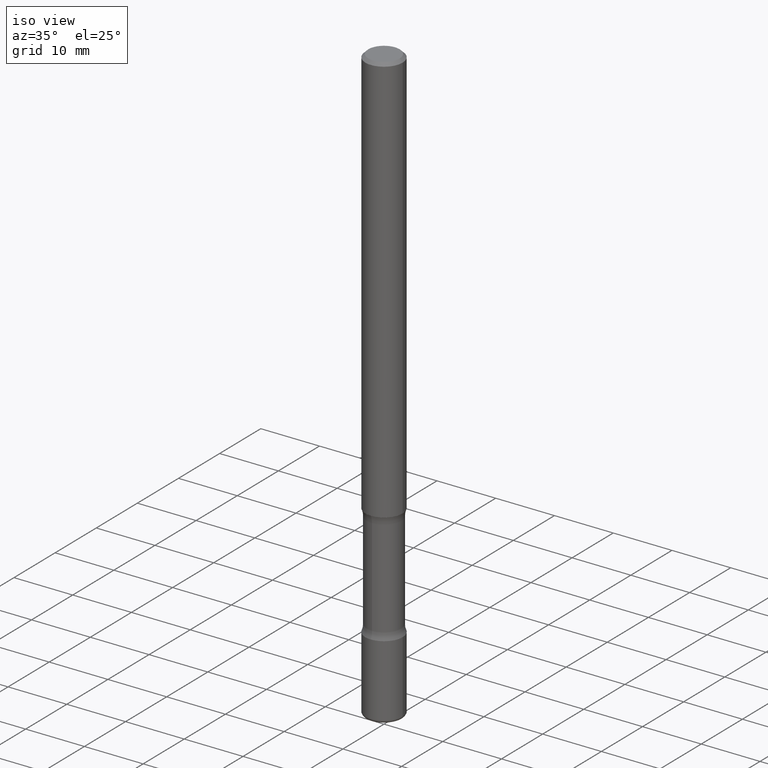
[diagram: clean part render]
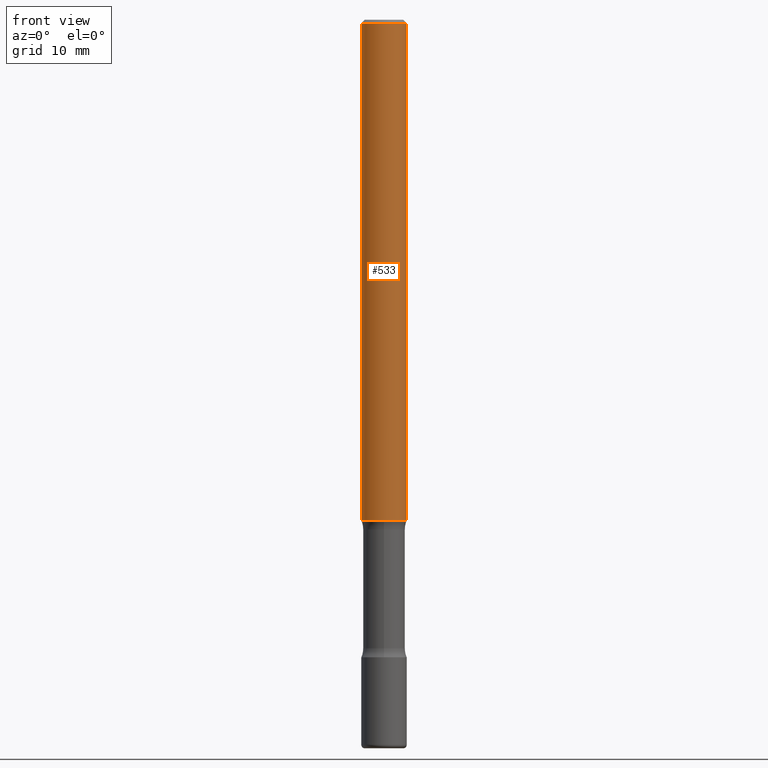
[diagram: tour spotlight — one face highlighted and labeled with its STEP entity id]
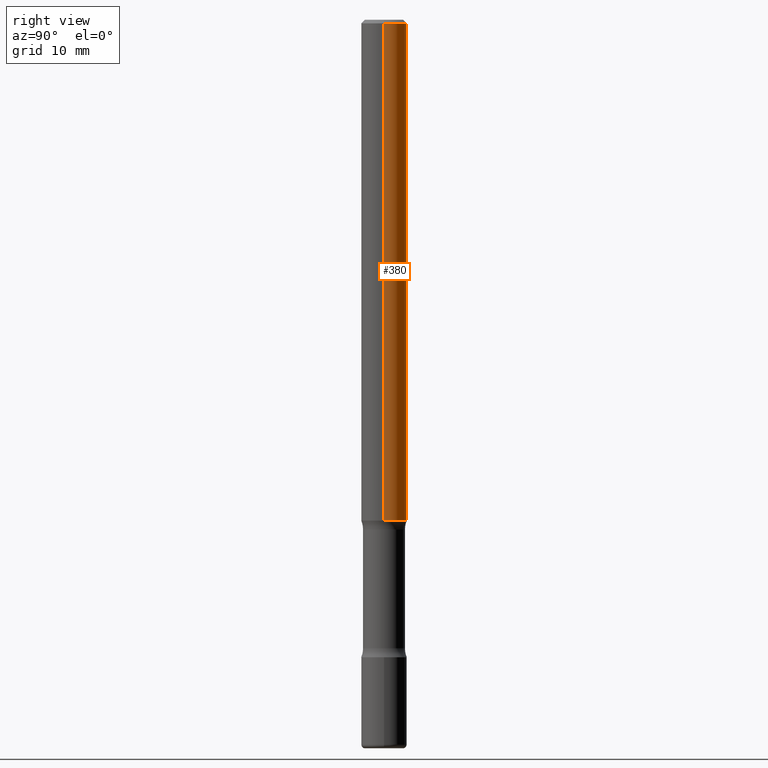
[diagram: tour spotlight — one face highlighted and labeled with its STEP entity id]
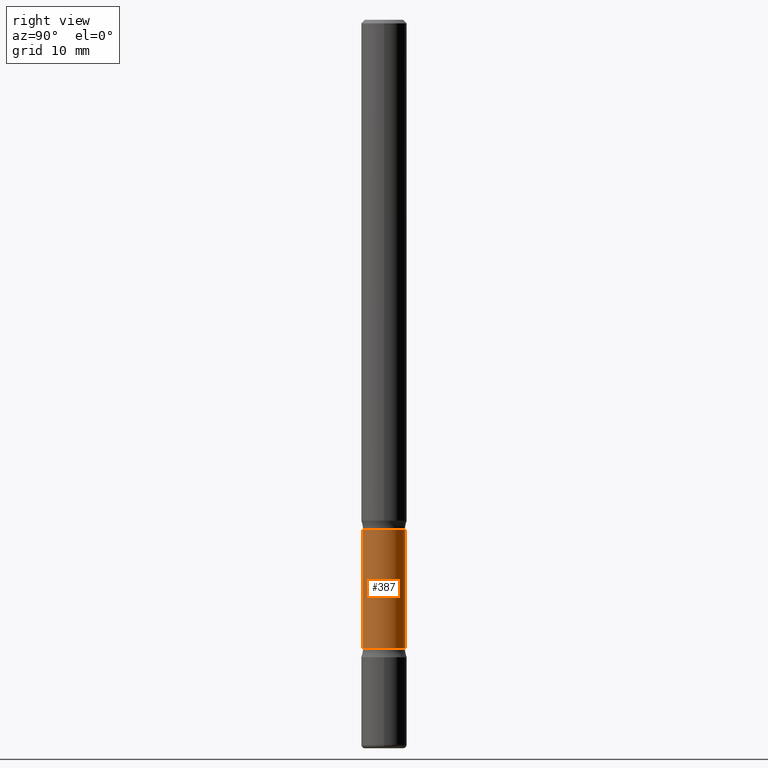
[diagram: tour spotlight — one face highlighted and labeled with its STEP entity id]
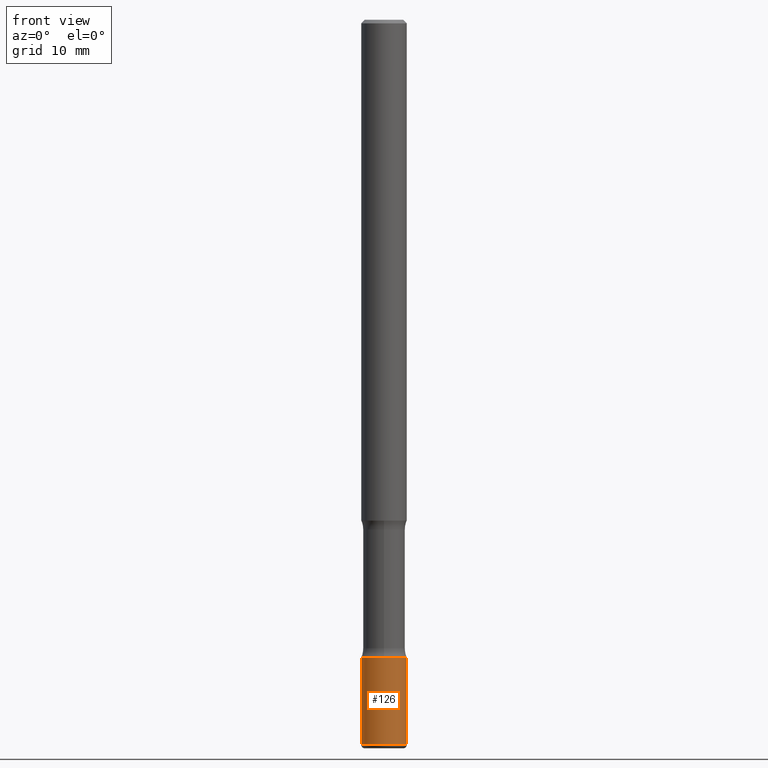
[diagram: tour spotlight — one face highlighted and labeled with its STEP entity id]
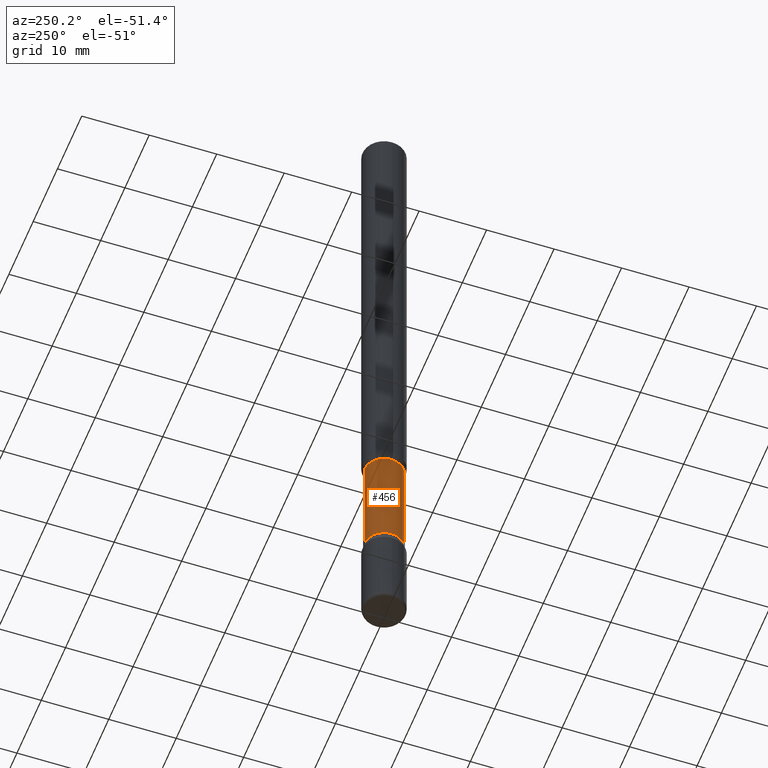
[diagram: tour spotlight — one face highlighted and labeled with its STEP entity id]
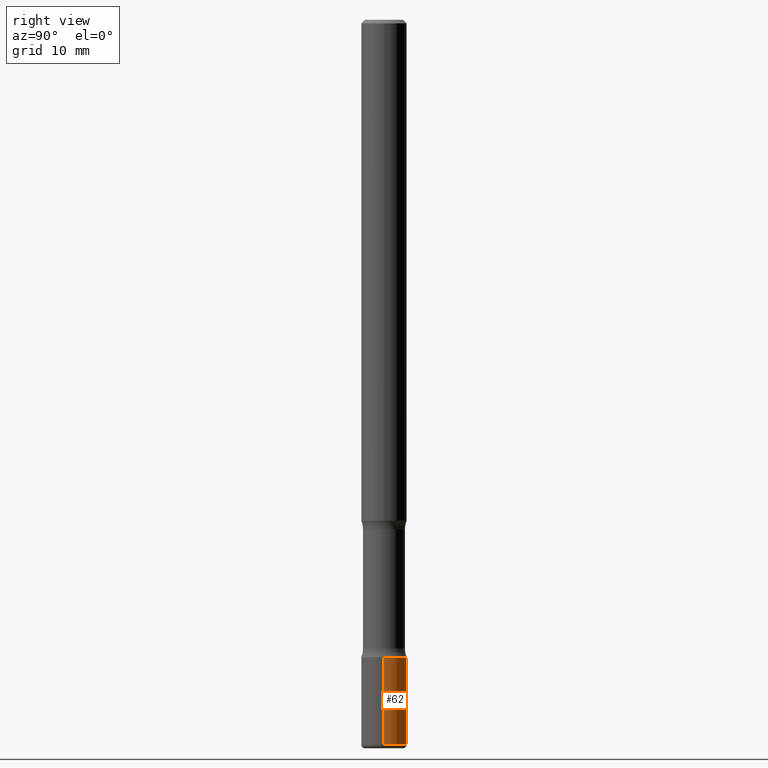
[diagram: tour spotlight — one face highlighted and labeled with its STEP entity id]
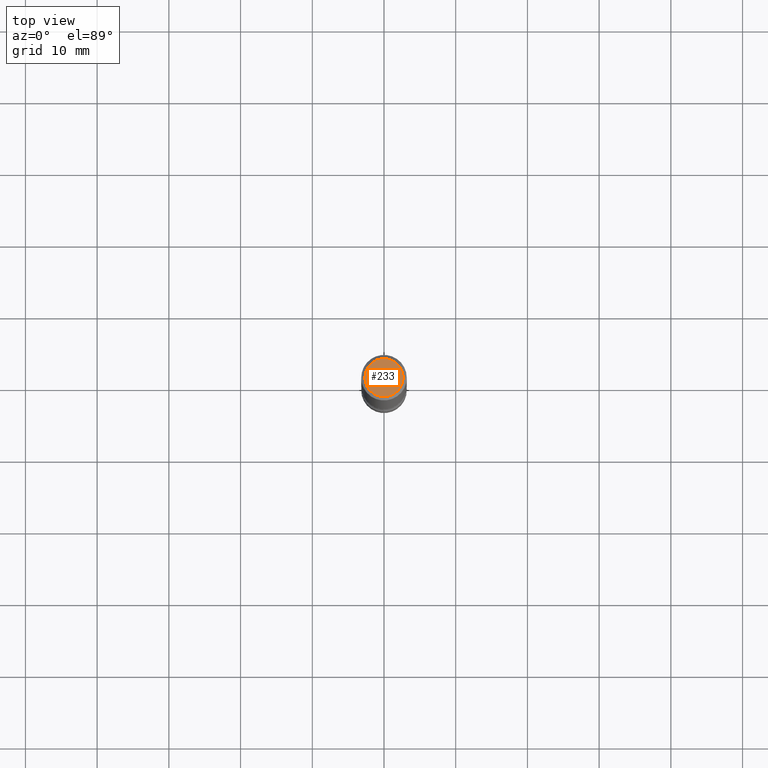
[diagram: tour spotlight — one face highlighted and labeled with its STEP entity id]
A machine part: a face-by-face anatomy tour. The part has 20 B-rep faces; the first image is the clean iso view, then the 7 largest visible faces are spotlighted one at a time (largest first), each with its STEP entity span.

Face 1 — front view, entity #533. In plain terms, the highlighted cylindrical surface (edge-blend (fillet) strip) has radius 3.175 mm, axis along (-0, 0, 1).
Definition (entity closure, byte-faithful):
#7 = AXIS2_PLACEMENT_3D ( 'NONE', #538, #363, #156 ) ;
#35 = CARTESIAN_POINT ( 'NONE',  ( -0.1250000000000005829, 8.030407079339238863E-16, -0.02000000000000013572 ) ) ;
#38 = CIRCLE ( 'NONE', #341, 0.1250000000000009159 ) ;
#45 = DIRECTION ( 'NONE',  ( -2.445468806185136597E-29, 3.491481338843145583E-15, 1.000000000000000000 ) ) ;
#50 = CARTESIAN_POINT ( 'NONE',  ( 0.1250000000000005829, -9.273918764983086878E-16, -0.02000000000000013572 ) ) ;
#66 = VECTOR ( 'NONE', #409, 39.37007874015748143 ) ;
#67 = ORIENTED_EDGE ( 'NONE', *, *, #553, .T. ) ;
#68 = DIRECTION ( 'NONE',  ( -2.445468806185136877E-29, 3.491481338843145188E-15, 1.000000000000000000 ) ) ;
#78 = ORIENTED_EDGE ( 'NONE', *, *, #438, .T. ) ;
#85 = DIRECTION ( 'NONE',  ( -2.445468806185136597E-29, 3.491481338843145583E-15, 1.000000000000000000 ) ) ;
#117 = FACE_OUTER_BOUND ( 'NONE', #164, .T. ) ;
#119 = CARTESIAN_POINT ( 'NONE',  ( 6.725039217009124520E-29, -9.601573681818649859E-15, -2.750000000000000000 ) ) ;
#123 = CYLINDRICAL_SURFACE ( 'NONE', #396, 0.1250000000000007494 ) ;
#125 = CARTESIAN_POINT ( 'NONE',  ( 0.000000000000000000, 0.000000000000000000, 0.000000000000000000 ) ) ;
#128 = DIRECTION ( 'NONE',  ( 1.000000000000000000, -6.982962677686273810E-15, 0.000000000000000000 ) ) ;
#135 = CIRCLE ( 'NONE', #7, 0.1250000000000005829 ) ;
#156 = DIRECTION ( 'NONE',  ( 1.000000000000000000, -6.982962677686267499E-15, 0.000000000000000000 ) ) ;
#164 = EDGE_LOOP ( 'NONE', ( #174, #67, #78, #310 ) ) ;
#174 = ORIENTED_EDGE ( 'NONE', *, *, #317, .F. ) ;
#203 = LINE ( 'NONE', #543, #66 ) ;
#238 = VERTEX_POINT ( 'NONE', #50 ) ;
#270 = VECTOR ( 'NONE', #68, 39.37007874015748143 ) ;
#278 = CARTESIAN_POINT ( 'NONE',  ( -0.1250000000000009159, -3.947523234597618725E-15, -2.750000000000000000 ) ) ;
#281 = LINE ( 'NONE', #356, #270 ) ;
#289 = CARTESIAN_POINT ( 'NONE',  ( 0.1250000000000009159, -1.047444401652944109E-14, -2.750000000000000000 ) ) ;
#310 = ORIENTED_EDGE ( 'NONE', *, *, #325, .F. ) ;
#317 = EDGE_CURVE ( 'NONE', #357, #448, #203, .T. ) ;
#325 = EDGE_CURVE ( 'NONE', #448, #238, #135, .T. ) ;
#341 = AXIS2_PLACEMENT_3D ( 'NONE', #119, #45, #128 ) ;
#356 = CARTESIAN_POINT ( 'NONE',  ( 0.1250000000000007494, -8.728703347107885650E-16, 6.095220969744956175E-30 ) ) ;
#357 = VERTEX_POINT ( 'NONE', #278 ) ;
#363 = DIRECTION ( 'NONE',  ( -2.445468806185136597E-29, 3.491481338843145583E-15, 1.000000000000000000 ) ) ;
#396 = AXIS2_PLACEMENT_3D ( 'NONE', #125, #85, #464 ) ;
#409 = DIRECTION ( 'NONE',  ( -2.445468806185136877E-29, 3.491481338843145188E-15, 1.000000000000000000 ) ) ;
#438 = EDGE_CURVE ( 'NONE', #534, #238, #281, .T. ) ;
#448 = VERTEX_POINT ( 'NONE', #35 ) ;
#464 = DIRECTION ( 'NONE',  ( 1.000000000000000000, -6.982962677686266711E-15, 4.876176775795935793E-29 ) ) ;
#533 = ADVANCED_FACE ( 'NONE', ( #117 ), #123, .T. ) ;
#534 = VERTEX_POINT ( 'NONE', #289 ) ;
#538 = CARTESIAN_POINT ( 'NONE',  ( 4.890937612370306439E-31, -6.982962677686338448E-17, -0.02000000000000013572 ) ) ;
#543 = CARTESIAN_POINT ( 'NONE',  ( -0.1250000000000007494, 8.881784197001305572E-16, -6.148668862818669362E-30 ) ) ;
#553 = EDGE_CURVE ( 'NONE', #357, #534, #38, .T. ) ;

Face 2 — right view, entity #380. In plain terms, the highlighted cylindrical surface (edge-blend (fillet) strip) has radius 3.175 mm, axis along (-0, 0, 1).
Definition (entity closure, byte-faithful):
#21 = ORIENTED_EDGE ( 'NONE', *, *, #506, .T. ) ;
#33 = CARTESIAN_POINT ( 'NONE',  ( 0.000000000000000000, 0.000000000000000000, 0.000000000000000000 ) ) ;
#35 = CARTESIAN_POINT ( 'NONE',  ( -0.1250000000000005829, 8.030407079339238863E-16, -0.02000000000000013572 ) ) ;
#50 = CARTESIAN_POINT ( 'NONE',  ( 0.1250000000000005829, -9.273918764983086878E-16, -0.02000000000000013572 ) ) ;
#66 = VECTOR ( 'NONE', #409, 39.37007874015748143 ) ;
#68 = DIRECTION ( 'NONE',  ( -2.445468806185136877E-29, 3.491481338843145188E-15, 1.000000000000000000 ) ) ;
#70 = EDGE_LOOP ( 'NONE', ( #21, #463, #241, #366 ) ) ;
#102 = CYLINDRICAL_SURFACE ( 'NONE', #130, 0.1250000000000007494 ) ;
#104 = AXIS2_PLACEMENT_3D ( 'NONE', #323, #420, #367 ) ;
#130 = AXIS2_PLACEMENT_3D ( 'NONE', #33, #237, #493 ) ;
#168 = DIRECTION ( 'NONE',  ( -2.445468806185136597E-29, 3.491481338843145583E-15, 1.000000000000000000 ) ) ;
#190 = CIRCLE ( 'NONE', #104, 0.1250000000000005829 ) ;
#200 = AXIS2_PLACEMENT_3D ( 'NONE', #555, #168, #467 ) ;
#203 = LINE ( 'NONE', #543, #66 ) ;
#237 = DIRECTION ( 'NONE',  ( -2.445468806185136597E-29, 3.491481338843145583E-15, 1.000000000000000000 ) ) ;
#238 = VERTEX_POINT ( 'NONE', #50 ) ;
#241 = ORIENTED_EDGE ( 'NONE', *, *, #465, .F. ) ;
#270 = VECTOR ( 'NONE', #68, 39.37007874015748143 ) ;
#278 = CARTESIAN_POINT ( 'NONE',  ( -0.1250000000000009159, -3.947523234597618725E-15, -2.750000000000000000 ) ) ;
#281 = LINE ( 'NONE', #356, #270 ) ;
#289 = CARTESIAN_POINT ( 'NONE',  ( 0.1250000000000009159, -1.047444401652944109E-14, -2.750000000000000000 ) ) ;
#317 = EDGE_CURVE ( 'NONE', #357, #448, #203, .T. ) ;
#323 = CARTESIAN_POINT ( 'NONE',  ( 4.890937612370306439E-31, -6.982962677686338448E-17, -0.02000000000000013572 ) ) ;
#356 = CARTESIAN_POINT ( 'NONE',  ( 0.1250000000000007494, -8.728703347107885650E-16, 6.095220969744956175E-30 ) ) ;
#357 = VERTEX_POINT ( 'NONE', #278 ) ;
#366 = ORIENTED_EDGE ( 'NONE', *, *, #438, .F. ) ;
#367 = DIRECTION ( 'NONE',  ( 1.000000000000000000, -6.982962677686267499E-15, 0.000000000000000000 ) ) ;
#380 = ADVANCED_FACE ( 'NONE', ( #451 ), #102, .T. ) ;
#409 = DIRECTION ( 'NONE',  ( -2.445468806185136877E-29, 3.491481338843145188E-15, 1.000000000000000000 ) ) ;
#420 = DIRECTION ( 'NONE',  ( -2.445468806185136597E-29, 3.491481338843145583E-15, 1.000000000000000000 ) ) ;
#438 = EDGE_CURVE ( 'NONE', #534, #238, #281, .T. ) ;
#448 = VERTEX_POINT ( 'NONE', #35 ) ;
#451 = FACE_OUTER_BOUND ( 'NONE', #70, .T. ) ;
#463 = ORIENTED_EDGE ( 'NONE', *, *, #317, .T. ) ;
#465 = EDGE_CURVE ( 'NONE', #238, #448, #190, .T. ) ;
#467 = DIRECTION ( 'NONE',  ( 1.000000000000000000, -6.982962677686273810E-15, 0.000000000000000000 ) ) ;
#493 = DIRECTION ( 'NONE',  ( 1.000000000000000000, -6.982962677686266711E-15, 4.876176775795935793E-29 ) ) ;
#506 = EDGE_CURVE ( 'NONE', #534, #357, #558, .T. ) ;
#534 = VERTEX_POINT ( 'NONE', #289 ) ;
#543 = CARTESIAN_POINT ( 'NONE',  ( -0.1250000000000007494, 8.881784197001305572E-16, -6.148668862818669362E-30 ) ) ;
#555 = CARTESIAN_POINT ( 'NONE',  ( 6.725039217009124520E-29, -9.601573681818649859E-15, -2.750000000000000000 ) ) ;
#558 = CIRCLE ( 'NONE', #200, 0.1250000000000009159 ) ;

Face 3 — right view, entity #387. In plain terms, the highlighted cylindrical surface (edge-blend (fillet) strip) has radius 2.921 mm, axis along (0, -0, -1).
Definition (entity closure, byte-faithful):
#1 = CARTESIAN_POINT ( 'NONE',  ( -8.232597597325185014E-16, -0.1150000000000099276, -2.798989794855664126 ) ) ;
#3 = CARTESIAN_POINT ( 'NONE',  ( 8.030407079339889673E-16, 0.1149999999999902073, -2.798989794855665458 ) ) ;
#6 = DIRECTION ( 'NONE',  ( 2.540850769089485060E-29, -3.354888939159931929E-15, -1.000000000000000000 ) ) ;
#16 = DIRECTION ( 'NONE',  ( 2.540850769089485060E-29, -3.354888939159932323E-15, -1.000000000000000000 ) ) ;
#32 = VERTEX_POINT ( 'NONE', #3 ) ;
#34 = ORIENTED_EDGE ( 'NONE', *, *, #157, .T. ) ;
#105 = CIRCLE ( 'NONE', #522, 0.1150000000000000744 ) ;
#109 = VERTEX_POINT ( 'NONE', #306 ) ;
#114 = FACE_OUTER_BOUND ( 'NONE', #318, .T. ) ;
#129 = EDGE_CURVE ( 'NONE', #109, #498, #271, .T. ) ;
#150 = CARTESIAN_POINT ( 'NONE',  ( 8.030407079340191413E-16, 0.1149999999999861411, -4.000000000000000888 ) ) ;
#157 = EDGE_CURVE ( 'NONE', #32, #500, #105, .T. ) ;
#188 = ORIENTED_EDGE ( 'NONE', *, *, #307, .F. ) ;
#189 = CARTESIAN_POINT ( 'NONE',  ( 6.777978502767415582E-29, -9.868373302474043768E-15, -2.798989794855664570 ) ) ;
#195 = DIRECTION ( 'NONE',  ( 2.540850769089485060E-29, -3.354888939159932323E-15, -1.000000000000000000 ) ) ;
#205 = CARTESIAN_POINT ( 'NONE',  ( 9.829566206192720058E-29, -1.389762915553097550E-14, -4.000000000000000000 ) ) ;
#220 = CARTESIAN_POINT ( 'NONE',  ( -7.889572697436279993E-16, -0.1150000000000139383, -3.999999999999999556 ) ) ;
#240 = EDGE_CURVE ( 'NONE', #500, #498, #258, .T. ) ;
#242 = DIRECTION ( 'NONE',  ( 6.982962677686265922E-15, 1.000000000000000000, -4.751039988981325759E-15 ) ) ;
#257 = DIRECTION ( 'NONE',  ( 6.982962677686265922E-15, 1.000000000000000000, -4.751039988981324181E-15 ) ) ;
#258 = LINE ( 'NONE', #220, #431 ) ;
#259 = VECTOR ( 'NONE', #496, 39.37007874015748143 ) ;
#269 = CYLINDRICAL_SURFACE ( 'NONE', #418, 0.1150000000000000328 ) ;
#271 = CIRCLE ( 'NONE', #461, 0.1150000000000000189 ) ;
#280 = ORIENTED_EDGE ( 'NONE', *, *, #240, .T. ) ;
#297 = DIRECTION ( 'NONE',  ( 6.982962677686265922E-15, 1.000000000000000000, -4.751039988981326548E-15 ) ) ;
#301 = DIRECTION ( 'NONE',  ( 2.540850769089485060E-29, -3.354888939159932323E-15, -1.000000000000000000 ) ) ;
#306 = CARTESIAN_POINT ( 'NONE',  ( 8.030407079340050404E-16, 0.1149999999999879591, -3.451010205144336762 ) ) ;
#307 = EDGE_CURVE ( 'NONE', #32, #109, #314, .T. ) ;
#314 = LINE ( 'NONE', #150, #259 ) ;
#318 = EDGE_LOOP ( 'NONE', ( #34, #280, #495, #188 ) ) ;
#329 = CARTESIAN_POINT ( 'NONE',  ( -8.232597597324986812E-16, -0.1150000000000120787, -3.451010205144335430 ) ) ;
#387 = ADVANCED_FACE ( 'NONE', ( #114 ), #269, .T. ) ;
#418 = AXIS2_PLACEMENT_3D ( 'NONE', #205, #195, #242 ) ;
#431 = VECTOR ( 'NONE', #6, 39.37007874015748143 ) ;
#461 = AXIS2_PLACEMENT_3D ( 'NONE', #482, #16, #297 ) ;
#482 = CARTESIAN_POINT ( 'NONE',  ( 8.434665063711427081E-29, -1.205582936505802725E-14, -3.451010205144335874 ) ) ;
#495 = ORIENTED_EDGE ( 'NONE', *, *, #129, .F. ) ;
#496 = DIRECTION ( 'NONE',  ( 2.540850769089485060E-29, -3.354888939159931929E-15, -1.000000000000000000 ) ) ;
#498 = VERTEX_POINT ( 'NONE', #329 ) ;
#500 = VERTEX_POINT ( 'NONE', #1 ) ;
#522 = AXIS2_PLACEMENT_3D ( 'NONE', #189, #301, #257 ) ;

Face 4 — front view, entity #126. In plain terms, the highlighted cylindrical surface (edge-blend (fillet) strip) has radius 3.175 mm, axis along (-0, 0, 1).
Definition (entity closure, byte-faithful):
#22 = DIRECTION ( 'NONE',  ( 1.000000000000000000, -6.982962677686272233E-15, 0.000000000000000000 ) ) ;
#23 = EDGE_CURVE ( 'NONE', #113, #434, #514, .T. ) ;
#59 = DIRECTION ( 'NONE',  ( -2.445468806185136877E-29, 3.491481338843145188E-15, 1.000000000000000000 ) ) ;
#95 = AXIS2_PLACEMENT_3D ( 'NONE', #273, #112, #239 ) ;
#107 = CARTESIAN_POINT ( 'NONE',  ( 9.732965848616844417E-29, -1.389609572859572061E-14, -3.979999999999999982 ) ) ;
#112 = DIRECTION ( 'NONE',  ( -2.445468806185136597E-29, 3.491481338843145583E-15, 1.000000000000000000 ) ) ;
#113 = VERTEX_POINT ( 'NONE', #479 ) ;
#118 = ORIENTED_EDGE ( 'NONE', *, *, #279, .T. ) ;
#126 = ADVANCED_FACE ( 'NONE', ( #435 ), #485, .T. ) ;
#127 = DIRECTION ( 'NONE',  ( -2.445468806185136877E-29, 3.491481338843145188E-15, 1.000000000000000000 ) ) ;
#137 = ORIENTED_EDGE ( 'NONE', *, *, #153, .F. ) ;
#151 = AXIS2_PLACEMENT_3D ( 'NONE', #394, #176, #339 ) ;
#153 = EDGE_CURVE ( 'NONE', #537, #459, #527, .T. ) ;
#176 = DIRECTION ( 'NONE',  ( -2.445468806185136597E-29, 3.491481338843145583E-15, 1.000000000000000000 ) ) ;
#215 = CARTESIAN_POINT ( 'NONE',  ( -0.1250000000000001665, -1.216996178757323895E-14, -3.499999999999999112 ) ) ;
#219 = EDGE_LOOP ( 'NONE', ( #137, #118, #322, #424 ) ) ;
#239 = DIRECTION ( 'NONE',  ( 1.000000000000000000, -6.982962677686269077E-15, 0.000000000000000000 ) ) ;
#273 = CARTESIAN_POINT ( 'NONE',  ( 8.559140821647976968E-29, -1.222018468595100619E-14, -3.499999999999999112 ) ) ;
#279 = EDGE_CURVE ( 'NONE', #537, #113, #368, .T. ) ;
#322 = ORIENTED_EDGE ( 'NONE', *, *, #23, .T. ) ;
#332 = VECTOR ( 'NONE', #127, 39.37007874015748143 ) ;
#336 = CARTESIAN_POINT ( 'NONE',  ( -0.1250000000000000555, -1.300791730889559380E-14, -3.979999999999999982 ) ) ;
#339 = DIRECTION ( 'NONE',  ( 1.000000000000000000, -6.982962677686266711E-15, 4.876176775795935793E-29 ) ) ;
#349 = EDGE_CURVE ( 'NONE', #459, #434, #414, .T. ) ;
#368 = CIRCLE ( 'NONE', #472, 0.1250000000000001110 ) ;
#394 = CARTESIAN_POINT ( 'NONE',  ( 0.000000000000000000, 0.000000000000000000, 0.000000000000000000 ) ) ;
#414 = CIRCLE ( 'NONE', #95, 0.1250000000000001665 ) ;
#424 = ORIENTED_EDGE ( 'NONE', *, *, #349, .F. ) ;
#434 = VERTEX_POINT ( 'NONE', #499 ) ;
#435 = FACE_OUTER_BOUND ( 'NONE', #219, .T. ) ;
#457 = CARTESIAN_POINT ( 'NONE',  ( 0.1250000000000001388, -8.728703347107843249E-16, 6.095220969744926748E-30 ) ) ;
#459 = VERTEX_POINT ( 'NONE', #215 ) ;
#472 = AXIS2_PLACEMENT_3D ( 'NONE', #107, #541, #22 ) ;
#479 = CARTESIAN_POINT ( 'NONE',  ( 0.1250000000000000555, -1.476896606330650395E-14, -3.979999999999999982 ) ) ;
#485 = CYLINDRICAL_SURFACE ( 'NONE', #151, 0.1250000000000001388 ) ;
#499 = CARTESIAN_POINT ( 'NONE',  ( 0.1250000000000001665, -1.309305502066179110E-14, -3.499999999999999112 ) ) ;
#514 = LINE ( 'NONE', #457, #332 ) ;
#519 = CARTESIAN_POINT ( 'NONE',  ( -0.1250000000000001388, 8.881784197001262184E-16, -6.148668862818638533E-30 ) ) ;
#527 = LINE ( 'NONE', #519, #546 ) ;
#537 = VERTEX_POINT ( 'NONE', #336 ) ;
#541 = DIRECTION ( 'NONE',  ( -2.445468806185136597E-29, 3.491481338843145583E-15, 1.000000000000000000 ) ) ;
#546 = VECTOR ( 'NONE', #59, 39.37007874015748143 ) ;

Face 5 — auxiliary view, entity #456. In plain terms, the highlighted cylindrical surface (edge-blend (fillet) strip) has radius 2.921 mm, axis along (0, -0, -1).
Definition (entity closure, byte-faithful):
#1 = CARTESIAN_POINT ( 'NONE',  ( -8.232597597325185014E-16, -0.1150000000000099276, -2.798989794855664126 ) ) ;
#3 = CARTESIAN_POINT ( 'NONE',  ( 8.030407079339889673E-16, 0.1149999999999902073, -2.798989794855665458 ) ) ;
#6 = DIRECTION ( 'NONE',  ( 2.540850769089485060E-29, -3.354888939159931929E-15, -1.000000000000000000 ) ) ;
#15 = CARTESIAN_POINT ( 'NONE',  ( 6.777978502767415582E-29, -9.868373302474043768E-15, -2.798989794855664570 ) ) ;
#29 = EDGE_LOOP ( 'NONE', ( #140, #154, #468, #74 ) ) ;
#32 = VERTEX_POINT ( 'NONE', #3 ) ;
#40 = AXIS2_PLACEMENT_3D ( 'NONE', #15, #351, #393 ) ;
#71 = DIRECTION ( 'NONE',  ( 6.982962677686265922E-15, 1.000000000000000000, -4.751039988981326548E-15 ) ) ;
#74 = ORIENTED_EDGE ( 'NONE', *, *, #255, .F. ) ;
#75 = CARTESIAN_POINT ( 'NONE',  ( 8.434665063711427081E-29, -1.205582936505802725E-14, -3.451010205144335874 ) ) ;
#109 = VERTEX_POINT ( 'NONE', #306 ) ;
#110 = DIRECTION ( 'NONE',  ( 2.540850769089485060E-29, -3.354888939159932323E-15, -1.000000000000000000 ) ) ;
#140 = ORIENTED_EDGE ( 'NONE', *, *, #240, .F. ) ;
#150 = CARTESIAN_POINT ( 'NONE',  ( 8.030407079340191413E-16, 0.1149999999999861411, -4.000000000000000888 ) ) ;
#154 = ORIENTED_EDGE ( 'NONE', *, *, #196, .T. ) ;
#163 = DIRECTION ( 'NONE',  ( 6.982962677686265922E-15, 1.000000000000000000, -4.751039988981325759E-15 ) ) ;
#178 = CIRCLE ( 'NONE', #508, 0.1150000000000000189 ) ;
#196 = EDGE_CURVE ( 'NONE', #500, #32, #487, .T. ) ;
#209 = AXIS2_PLACEMENT_3D ( 'NONE', #376, #413, #163 ) ;
#220 = CARTESIAN_POINT ( 'NONE',  ( -7.889572697436279993E-16, -0.1150000000000139383, -3.999999999999999556 ) ) ;
#240 = EDGE_CURVE ( 'NONE', #500, #498, #258, .T. ) ;
#248 = FACE_OUTER_BOUND ( 'NONE', #29, .T. ) ;
#255 = EDGE_CURVE ( 'NONE', #498, #109, #178, .T. ) ;
#258 = LINE ( 'NONE', #220, #431 ) ;
#259 = VECTOR ( 'NONE', #496, 39.37007874015748143 ) ;
#306 = CARTESIAN_POINT ( 'NONE',  ( 8.030407079340050404E-16, 0.1149999999999879591, -3.451010205144336762 ) ) ;
#307 = EDGE_CURVE ( 'NONE', #32, #109, #314, .T. ) ;
#314 = LINE ( 'NONE', #150, #259 ) ;
#329 = CARTESIAN_POINT ( 'NONE',  ( -8.232597597324986812E-16, -0.1150000000000120787, -3.451010205144335430 ) ) ;
#351 = DIRECTION ( 'NONE',  ( 2.540850769089485060E-29, -3.354888939159932323E-15, -1.000000000000000000 ) ) ;
#376 = CARTESIAN_POINT ( 'NONE',  ( 9.829566206192720058E-29, -1.389762915553097550E-14, -4.000000000000000000 ) ) ;
#393 = DIRECTION ( 'NONE',  ( 6.982962677686265922E-15, 1.000000000000000000, -4.751039988981324181E-15 ) ) ;
#413 = DIRECTION ( 'NONE',  ( 2.540850769089485060E-29, -3.354888939159932323E-15, -1.000000000000000000 ) ) ;
#431 = VECTOR ( 'NONE', #6, 39.37007874015748143 ) ;
#456 = ADVANCED_FACE ( 'NONE', ( #248 ), #504, .T. ) ;
#468 = ORIENTED_EDGE ( 'NONE', *, *, #307, .T. ) ;
#487 = CIRCLE ( 'NONE', #40, 0.1150000000000000744 ) ;
#496 = DIRECTION ( 'NONE',  ( 2.540850769089485060E-29, -3.354888939159931929E-15, -1.000000000000000000 ) ) ;
#498 = VERTEX_POINT ( 'NONE', #329 ) ;
#500 = VERTEX_POINT ( 'NONE', #1 ) ;
#504 = CYLINDRICAL_SURFACE ( 'NONE', #209, 0.1150000000000000328 ) ;
#508 = AXIS2_PLACEMENT_3D ( 'NONE', #75, #110, #71 ) ;

Face 6 — right view, entity #62. In plain terms, the highlighted cylindrical surface (edge-blend (fillet) strip) has radius 3.175 mm, axis along (-0, 0, 1).
Definition (entity closure, byte-faithful):
#23 = EDGE_CURVE ( 'NONE', #113, #434, #514, .T. ) ;
#49 = DIRECTION ( 'NONE',  ( -2.445468806185136597E-29, 3.491481338843145583E-15, 1.000000000000000000 ) ) ;
#59 = DIRECTION ( 'NONE',  ( -2.445468806185136877E-29, 3.491481338843145188E-15, 1.000000000000000000 ) ) ;
#62 = ADVANCED_FACE ( 'NONE', ( #516 ), #469, .T. ) ;
#72 = ORIENTED_EDGE ( 'NONE', *, *, #536, .F. ) ;
#83 = CARTESIAN_POINT ( 'NONE',  ( 8.559140821647976968E-29, -1.222018468595100619E-14, -3.499999999999999112 ) ) ;
#96 = AXIS2_PLACEMENT_3D ( 'NONE', #83, #374, #422 ) ;
#106 = ORIENTED_EDGE ( 'NONE', *, *, #23, .F. ) ;
#113 = VERTEX_POINT ( 'NONE', #479 ) ;
#127 = DIRECTION ( 'NONE',  ( -2.445468806185136877E-29, 3.491481338843145188E-15, 1.000000000000000000 ) ) ;
#152 = AXIS2_PLACEMENT_3D ( 'NONE', #173, #250, #291 ) ;
#153 = EDGE_CURVE ( 'NONE', #537, #459, #527, .T. ) ;
#173 = CARTESIAN_POINT ( 'NONE',  ( 9.732965848616844417E-29, -1.389609572859572061E-14, -3.979999999999999982 ) ) ;
#215 = CARTESIAN_POINT ( 'NONE',  ( -0.1250000000000001665, -1.216996178757323895E-14, -3.499999999999999112 ) ) ;
#217 = DIRECTION ( 'NONE',  ( 1.000000000000000000, -6.982962677686266711E-15, 4.876176775795935793E-29 ) ) ;
#250 = DIRECTION ( 'NONE',  ( -2.445468806185136597E-29, 3.491481338843145583E-15, 1.000000000000000000 ) ) ;
#272 = ORIENTED_EDGE ( 'NONE', *, *, #153, .T. ) ;
#291 = DIRECTION ( 'NONE',  ( 1.000000000000000000, -6.982962677686272233E-15, 0.000000000000000000 ) ) ;
#332 = VECTOR ( 'NONE', #127, 39.37007874015748143 ) ;
#336 = CARTESIAN_POINT ( 'NONE',  ( -0.1250000000000000555, -1.300791730889559380E-14, -3.979999999999999982 ) ) ;
#374 = DIRECTION ( 'NONE',  ( -2.445468806185136597E-29, 3.491481338843145583E-15, 1.000000000000000000 ) ) ;
#406 = CIRCLE ( 'NONE', #152, 0.1250000000000001110 ) ;
#422 = DIRECTION ( 'NONE',  ( 1.000000000000000000, -6.982962677686269077E-15, 0.000000000000000000 ) ) ;
#427 = CARTESIAN_POINT ( 'NONE',  ( 0.000000000000000000, 0.000000000000000000, 0.000000000000000000 ) ) ;
#434 = VERTEX_POINT ( 'NONE', #499 ) ;
#445 = EDGE_LOOP ( 'NONE', ( #542, #272, #72, #106 ) ) ;
#457 = CARTESIAN_POINT ( 'NONE',  ( 0.1250000000000001388, -8.728703347107843249E-16, 6.095220969744926748E-30 ) ) ;
#459 = VERTEX_POINT ( 'NONE', #215 ) ;
#462 = CIRCLE ( 'NONE', #96, 0.1250000000000001665 ) ;
#469 = CYLINDRICAL_SURFACE ( 'NONE', #520, 0.1250000000000001388 ) ;
#479 = CARTESIAN_POINT ( 'NONE',  ( 0.1250000000000000555, -1.476896606330650395E-14, -3.979999999999999982 ) ) ;
#483 = EDGE_CURVE ( 'NONE', #113, #537, #406, .T. ) ;
#499 = CARTESIAN_POINT ( 'NONE',  ( 0.1250000000000001665, -1.309305502066179110E-14, -3.499999999999999112 ) ) ;
#514 = LINE ( 'NONE', #457, #332 ) ;
#516 = FACE_OUTER_BOUND ( 'NONE', #445, .T. ) ;
#519 = CARTESIAN_POINT ( 'NONE',  ( -0.1250000000000001388, 8.881784197001262184E-16, -6.148668862818638533E-30 ) ) ;
#520 = AXIS2_PLACEMENT_3D ( 'NONE', #427, #49, #217 ) ;
#527 = LINE ( 'NONE', #519, #546 ) ;
#536 = EDGE_CURVE ( 'NONE', #434, #459, #462, .T. ) ;
#537 = VERTEX_POINT ( 'NONE', #336 ) ;
#542 = ORIENTED_EDGE ( 'NONE', *, *, #483, .T. ) ;
#546 = VECTOR ( 'NONE', #59, 39.37007874015748143 ) ;

Face 7 — top view, entity #233. In plain terms, the highlighted planar face has unit normal (0, -0, -1).
Definition (entity closure, byte-faithful):
#18 = AXIS2_PLACEMENT_3D ( 'NONE', #399, #77, #192 ) ;
#53 = DIRECTION ( 'NONE',  ( -2.445468806185136597E-29, 3.491481338843145583E-15, 1.000000000000000000 ) ) ;
#77 = DIRECTION ( 'NONE',  ( -2.445468806185136597E-29, 3.491481338843145583E-15, 1.000000000000000000 ) ) ;
#90 = CARTESIAN_POINT ( 'NONE',  ( 7.332110811570615742E-16, 0.1050000000000005235, -3.900823592740843665E-16 ) ) ;
#91 = CARTESIAN_POINT ( 'NONE',  ( 1.148236555768741665E-45, -1.639377487418492057E-31, -4.695363739110452099E-17 ) ) ;
#93 = ORIENTED_EDGE ( 'NONE', *, *, #251, .T. ) ;
#103 = AXIS2_PLACEMENT_3D ( 'NONE', #91, #53, #391 ) ;
#134 = PLANE ( 'NONE',  #182 ) ;
#182 = AXIS2_PLACEMENT_3D ( 'NONE', #90, #386, #428 ) ;
#192 = DIRECTION ( 'NONE',  ( 1.000000000000000000, -6.982962677686266711E-15, 4.874400871621214113E-29 ) ) ;
#199 = CIRCLE ( 'NONE', #103, 0.1050000000000005235 ) ;
#233 = ADVANCED_FACE ( 'NONE', ( #530 ), #134, .F. ) ;
#251 = EDGE_CURVE ( 'NONE', #540, #404, #199, .T. ) ;
#321 = EDGE_CURVE ( 'NONE', #404, #540, #330, .T. ) ;
#330 = CIRCLE ( 'NONE', #18, 0.1050000000000005235 ) ;
#355 = EDGE_LOOP ( 'NONE', ( #385, #93 ) ) ;
#385 = ORIENTED_EDGE ( 'NONE', *, *, #321, .T. ) ;
#386 = DIRECTION ( 'NONE',  ( 2.438088387897960049E-29, -3.491481338843145188E-15, -1.000000000000000000 ) ) ;
#391 = DIRECTION ( 'NONE',  ( 1.000000000000000000, -6.982962677686266711E-15, 4.874400871621214113E-29 ) ) ;
#399 = CARTESIAN_POINT ( 'NONE',  ( 1.148236555768741665E-45, -1.639377487418492057E-31, -4.695363739110452099E-17 ) ) ;
#404 = VERTEX_POINT ( 'NONE', #545 ) ;
#428 = DIRECTION ( 'NONE',  ( -1.000000000000000000, 6.982962677686265922E-15, -4.876176775795935793E-29 ) ) ;
#458 = CARTESIAN_POINT ( 'NONE',  ( 0.1050000000000005235, -8.238720831321616087E-16, -4.695363739109907908E-17 ) ) ;
#530 = FACE_OUTER_BOUND ( 'NONE', #355, .T. ) ;
#540 = VERTEX_POINT ( 'NONE', #458 ) ;
#545 = CARTESIAN_POINT ( 'NONE',  ( -0.1050000000000005235, 7.681258945454927303E-16, -4.695363739110977184E-17 ) ) ;